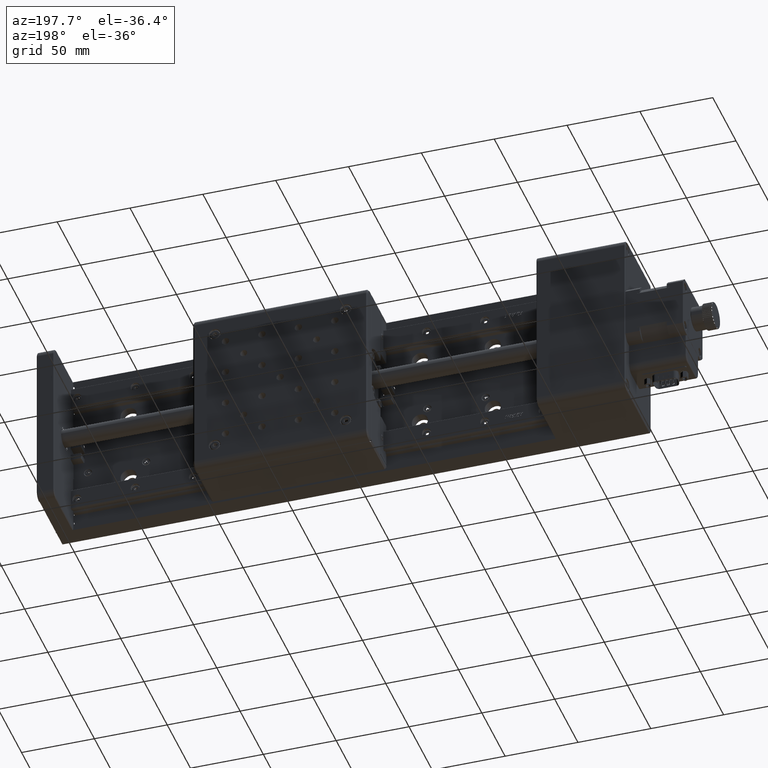
[diagram: clean part render]
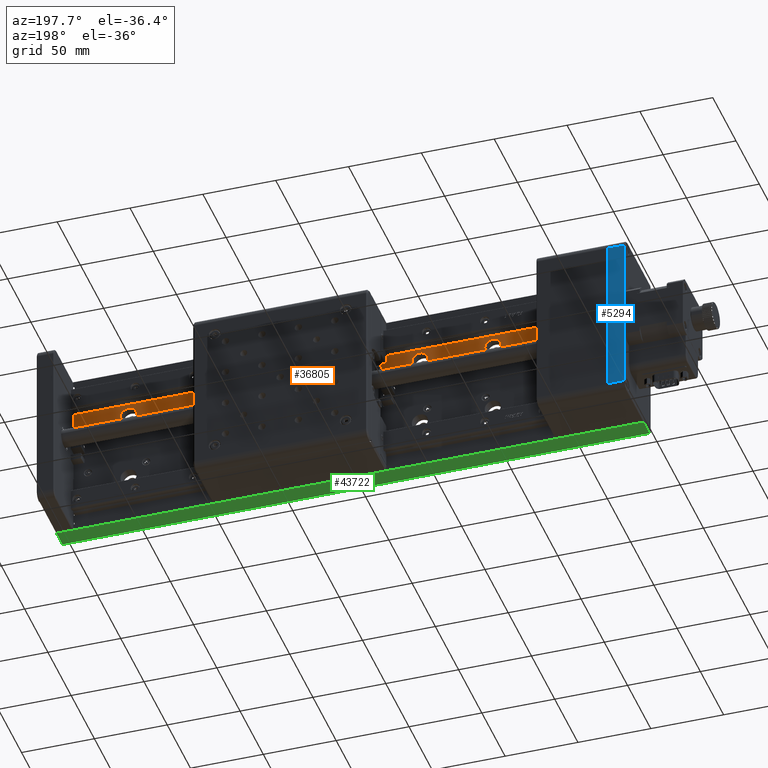
[diagram: same view with three faces highlighted in distinct colors, each labeled with its STEP entity id]
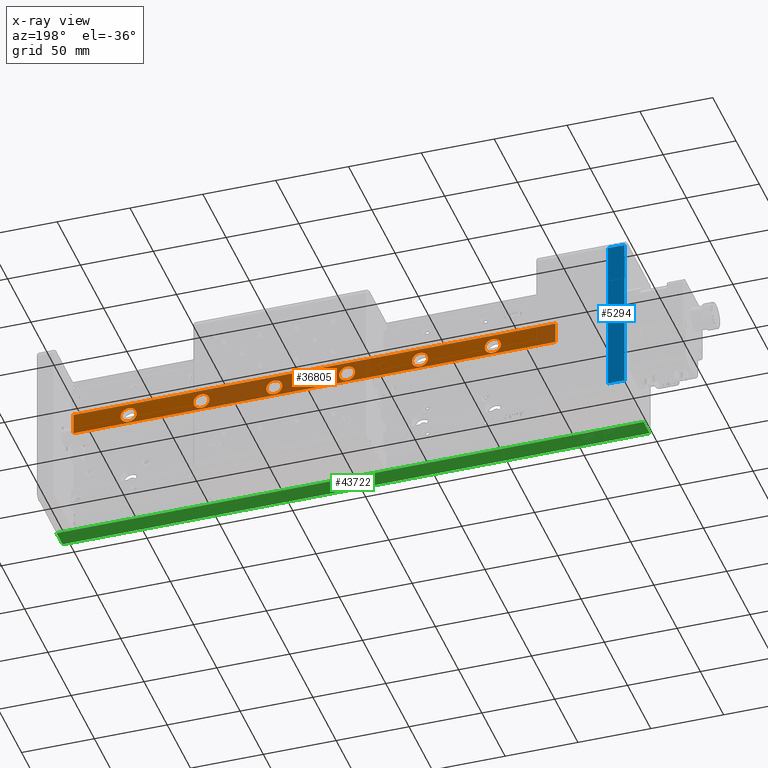
[diagram: x-ray of the same camera — body ghosted, the three highlighted faces saturated]
A machine part, auxiliary view with three faces highlighted in distinct colors.
The next image is the same camera in x-ray (body ghosted, the three faces saturated) — at least one of them is partly hidden behind the body in this view.
Their STEP definitions:

[orange] entity #36805 — the highlighted planar face has unit normal (0, 1, -0).
#657 = EDGE_LOOP ( 'NONE', ( #27978, #5936 ) ) ;
#702 = EDGE_CURVE ( 'NONE', #16754, #17798, #886, .T. ) ;
#886 = CIRCLE ( 'NONE', #5355, 5.500000000000060400 ) ;
#1169 = PLANE ( 'NONE',  #46442 ) ;
#1493 = VERTEX_POINT ( 'NONE', #30551 ) ;
#2066 = CARTESIAN_POINT ( 'NONE',  ( -1149.755485603264600, 14.00000000000032900, -316.4134800466646900 ) ) ;
#2125 = DIRECTION ( 'NONE',  ( 1.401298464324817100E-045, 1.000000000000000000, -1.224646799147353200E-016 ) ) ;
#2161 = AXIS2_PLACEMENT_3D ( 'NONE', #42386, #22781, #30156 ) ;
#2579 = DIRECTION ( 'NONE',  ( -1.056547006598531300E-014, -1.224646799147353200E-016, -1.000000000000000000 ) ) ;
#2685 = FACE_BOUND ( 'NONE', #14513, .T. ) ;
#3140 = DIRECTION ( 'NONE',  ( -1.000000000000000000, 0.0000000000000000000, 1.009293658750131200E-014 ) ) ;
#4107 = EDGE_CURVE ( 'NONE', #32392, #12108, #26063, .T. ) ;
#4406 = ORIENTED_EDGE ( 'NONE', *, *, #18866, .F. ) ;
#4478 = FACE_OUTER_BOUND ( 'NONE', #42921, .T. ) ;
#4717 = DIRECTION ( 'NONE',  ( 1.401298464324817100E-045, 1.000000000000000000, -1.224646799147353200E-016 ) ) ;
#5329 = VERTEX_POINT ( 'NONE', #32606 ) ;
#5355 = AXIS2_PLACEMENT_3D ( 'NONE', #9021, #13146, #25011 ) ;
#5394 = CARTESIAN_POINT ( 'NONE',  ( -803.7554856032646700, 14.00000000000032700, -331.4134800466683800 ) ) ;
#5729 = FACE_BOUND ( 'NONE', #50072, .T. ) ;
#5936 = ORIENTED_EDGE ( 'NONE', *, *, #9138, .F. ) ;
#6136 = AXIS2_PLACEMENT_3D ( 'NONE', #6527, #45868, #42585 ) ;
#6527 = CARTESIAN_POINT ( 'NONE',  ( -1041.755485603264800, 14.00000000000032900, -324.9134800466658800 ) ) ;
#8516 = CIRCLE ( 'NONE', #39396, 5.500000000000060400 ) ;
#8920 = ORIENTED_EDGE ( 'NONE', *, *, #24120, .F. ) ;
#8992 = DIRECTION ( 'NONE',  ( -1.000000000000000000, 0.0000000000000000000, 1.009293658750131200E-014 ) ) ;
#9021 = CARTESIAN_POINT ( 'NONE',  ( -941.7554856032645600, 14.00000000000032900, -324.9134800466669000 ) ) ;
#9138 = EDGE_CURVE ( 'NONE', #35361, #35616, #11641, .T. ) ;
#9636 = CIRCLE ( 'NONE', #44078, 5.500000000000060400 ) ;
#10022 = FACE_BOUND ( 'NONE', #12242, .T. ) ;
#10925 = ORIENTED_EDGE ( 'NONE', *, *, #11642, .F. ) ;
#10986 = CARTESIAN_POINT ( 'NONE',  ( -1134.755485603265200, 14.00000000000031800, -401.9134800466649200 ) ) ;
#11160 = LINE ( 'NONE', #2066, #38810 ) ;
#11230 = CARTESIAN_POINT ( 'NONE',  ( -836.2554856032644500, 14.00000000000032900, -324.9134800466680400 ) ) ;
#11458 = CARTESIAN_POINT ( 'NONE',  ( -886.2554856032645600, 14.00000000000032900, -324.9134800466675300 ) ) ;
#11641 = CIRCLE ( 'NONE', #44807, 5.500000000000060400 ) ;
#11642 = EDGE_CURVE ( 'NONE', #21057, #11962, #29814, .T. ) ;
#11944 = DIRECTION ( 'NONE',  ( -1.000000000000000000, 0.0000000000000000000, 1.009293658750151600E-014 ) ) ;
#11962 = VERTEX_POINT ( 'NONE', #49492 ) ;
#12108 = VERTEX_POINT ( 'NONE', #11458 ) ;
#12242 = EDGE_LOOP ( 'NONE', ( #14410, #4406 ) ) ;
#13005 = DIRECTION ( 'NONE',  ( -1.000000000000000000, 1.293896909779627600E-030, 1.056547006598531300E-014 ) ) ;
#13146 = DIRECTION ( 'NONE',  ( 1.401298464324817100E-045, 1.000000000000000000, -1.224646799147353200E-016 ) ) ;
#13699 = AXIS2_PLACEMENT_3D ( 'NONE', #15887, #15727, #11944 ) ;
#13819 = CIRCLE ( 'NONE', #31731, 5.500000000000060400 ) ;
#14410 = ORIENTED_EDGE ( 'NONE', *, *, #4107, .F. ) ;
#14413 = CIRCLE ( 'NONE', #16135, 5.500000000000060400 ) ;
#14428 = DIRECTION ( 'NONE',  ( 1.056547006598531300E-014, 1.224646799147353200E-016, 1.000000000000000000 ) ) ;
#14513 = EDGE_LOOP ( 'NONE', ( #24530, #35205 ) ) ;
#15727 = DIRECTION ( 'NONE',  ( 1.401298464324817100E-045, 1.000000000000000000, -1.224646799147353200E-016 ) ) ;
#15887 = CARTESIAN_POINT ( 'NONE',  ( -991.7554856032645600, 14.00000000000032900, -324.9134800466664500 ) ) ;
#15906 = CARTESIAN_POINT ( 'NONE',  ( -1036.255485603264600, 14.00000000000032900, -324.9134800466659400 ) ) ;
#16135 = AXIS2_PLACEMENT_3D ( 'NONE', #45420, #2125, #3140 ) ;
#16443 = LINE ( 'NONE', #41348, #39820 ) ;
#16670 = EDGE_CURVE ( 'NONE', #5329, #1493, #31843, .T. ) ;
#16754 = VERTEX_POINT ( 'NONE', #46860 ) ;
#16948 = ORIENTED_EDGE ( 'NONE', *, *, #43068, .F. ) ;
#16954 = CARTESIAN_POINT ( 'NONE',  ( -791.7554856032642200, 14.00000000000033200, -289.9134800466685000 ) ) ;
#17056 = CARTESIAN_POINT ( 'NONE',  ( -1047.255485603264800, 14.00000000000032900, -324.9134800466658200 ) ) ;
#17204 = EDGE_CURVE ( 'NONE', #1493, #30574, #16443, .T. ) ;
#17420 = AXIS2_PLACEMENT_3D ( 'NONE', #42493, #27355, #38877 ) ;
#17534 = CIRCLE ( 'NONE', #17420, 5.500000000000060400 ) ;
#17789 = DIRECTION ( 'NONE',  ( 1.401298464324817100E-045, 1.000000000000000000, -1.224646799147353200E-016 ) ) ;
#17798 = VERTEX_POINT ( 'NONE', #44615 ) ;
#17834 = EDGE_CURVE ( 'NONE', #35616, #35361, #9636, .T. ) ;
#18293 = CARTESIAN_POINT ( 'NONE',  ( -1091.755485603264600, 14.00000000000032900, -324.9134800466653700 ) ) ;
#18672 = EDGE_CURVE ( 'NONE', #18690, #32006, #17534, .T. ) ;
#18690 = VERTEX_POINT ( 'NONE', #11230 ) ;
#18866 = EDGE_CURVE ( 'NONE', #12108, #32392, #14413, .T. ) ;
#18990 = CIRCLE ( 'NONE', #6136, 5.500000000000060400 ) ;
#19049 = DIRECTION ( 'NONE',  ( 1.401298464324817100E-045, 1.000000000000000000, -1.224646799147353200E-016 ) ) ;
#19076 = VERTEX_POINT ( 'NONE', #46968 ) ;
#19989 = DIRECTION ( 'NONE',  ( 1.401298464324817100E-045, 1.000000000000000000, -1.224646799147353200E-016 ) ) ;
#20044 = DIRECTION ( 'NONE',  ( 1.874236696034442800E-044, 1.000000000000000000, -1.224646799147353200E-016 ) ) ;
#21057 = VERTEX_POINT ( 'NONE', #26358 ) ;
#22334 = DIRECTION ( 'NONE',  ( -1.000000000000000000, 0.0000000000000000000, 1.009293658750131200E-014 ) ) ;
#22752 = DIRECTION ( 'NONE',  ( 1.000000000000000000, -1.293896909779627600E-030, -1.056547006598531300E-014 ) ) ;
#22781 = DIRECTION ( 'NONE',  ( 1.401298464324817100E-045, 1.000000000000000000, -1.224646799147353200E-016 ) ) ;
#23171 = CARTESIAN_POINT ( 'NONE',  ( -1041.755485603264800, 14.00000000000032900, -324.9134800466658800 ) ) ;
#23975 = ORIENTED_EDGE ( 'NONE', *, *, #25780, .F. ) ;
#24120 = EDGE_CURVE ( 'NONE', #19076, #5329, #11160, .T. ) ;
#24158 = FACE_BOUND ( 'NONE', #657, .T. ) ;
#24244 = CARTESIAN_POINT ( 'NONE',  ( -897.2554856032646700, 14.00000000000032900, -324.9134800466674200 ) ) ;
#24530 = ORIENTED_EDGE ( 'NONE', *, *, #28154, .F. ) ;
#24796 = VERTEX_POINT ( 'NONE', #17056 ) ;
#25011 = DIRECTION ( 'NONE',  ( -1.000000000000000000, 0.0000000000000000000, 1.009293658750131200E-014 ) ) ;
#25780 = EDGE_CURVE ( 'NONE', #24796, #28097, #18990, .T. ) ;
#25786 = EDGE_CURVE ( 'NONE', #28097, #24796, #8516, .T. ) ;
#26063 = CIRCLE ( 'NONE', #45348, 5.500000000000060400 ) ;
#26358 = CARTESIAN_POINT ( 'NONE',  ( -997.2554856032644500, 14.00000000000032900, -324.9134800466663900 ) ) ;
#27355 = DIRECTION ( 'NONE',  ( 1.401298464324817100E-045, 1.000000000000000000, -1.224646799147353200E-016 ) ) ;
#27978 = ORIENTED_EDGE ( 'NONE', *, *, #17834, .F. ) ;
#28097 = VERTEX_POINT ( 'NONE', #15906 ) ;
#28154 = EDGE_CURVE ( 'NONE', #32006, #18690, #44014, .T. ) ;
#28567 = CARTESIAN_POINT ( 'NONE',  ( -1091.755485603264600, 14.00000000000032900, -324.9134800466653700 ) ) ;
#28797 = VECTOR ( 'NONE', #2579, 1000.000000000000000 ) ;
#29470 = CIRCLE ( 'NONE', #13699, 5.499999999999949400 ) ;
#29696 = ORIENTED_EDGE ( 'NONE', *, *, #25786, .F. ) ;
#29814 = CIRCLE ( 'NONE', #2161, 5.499999999999949400 ) ;
#30156 = DIRECTION ( 'NONE',  ( -1.000000000000000000, 0.0000000000000000000, 1.009293658750151600E-014 ) ) ;
#30551 = CARTESIAN_POINT ( 'NONE',  ( -1134.755485603264600, 14.00000000000032700, -331.4134800466649200 ) ) ;
#30574 = VERTEX_POINT ( 'NONE', #5394 ) ;
#31692 = DIRECTION ( 'NONE',  ( 1.401298464324817100E-045, 1.000000000000000000, -1.224646799147353200E-016 ) ) ;
#31731 = AXIS2_PLACEMENT_3D ( 'NONE', #47497, #4717, #43910 ) ;
#31766 = EDGE_CURVE ( 'NONE', #17798, #16754, #13819, .T. ) ;
#31843 = LINE ( 'NONE', #10986, #28797 ) ;
#32006 = VERTEX_POINT ( 'NONE', #38034 ) ;
#32392 = VERTEX_POINT ( 'NONE', #24244 ) ;
#32606 = CARTESIAN_POINT ( 'NONE',  ( -1134.755485603264300, 14.00000000000032900, -316.4134800466649200 ) ) ;
#33212 = ORIENTED_EDGE ( 'NONE', *, *, #39887, .F. ) ;
#34056 = ORIENTED_EDGE ( 'NONE', *, *, #702, .F. ) ;
#35205 = ORIENTED_EDGE ( 'NONE', *, *, #18672, .F. ) ;
#35319 = VECTOR ( 'NONE', #14428, 1000.000000000000000 ) ;
#35361 = VERTEX_POINT ( 'NONE', #48284 ) ;
#35463 = EDGE_LOOP ( 'NONE', ( #23975, #29696 ) ) ;
#35616 = VERTEX_POINT ( 'NONE', #35695 ) ;
#35695 = CARTESIAN_POINT ( 'NONE',  ( -1097.255485603264600, 14.00000000000032900, -324.9134800466653100 ) ) ;
#35885 = EDGE_LOOP ( 'NONE', ( #10925, #16948 ) ) ;
#36805 = ADVANCED_FACE ( 'NONE', ( #4478, #2685, #10022, #5729, #49349, #38905, #24158 ), #1169, .T. ) ;
#37448 = DIRECTION ( 'NONE',  ( -1.000000000000000000, 1.303720833720717900E-030, 1.064568849262007800E-014 ) ) ;
#37868 = DIRECTION ( 'NONE',  ( -1.000000000000000000, 0.0000000000000000000, 1.009293658750131200E-014 ) ) ;
#38034 = CARTESIAN_POINT ( 'NONE',  ( -847.2554856032645600, 14.00000000000032900, -324.9134800466679300 ) ) ;
#38404 = LINE ( 'NONE', #49656, #35319 ) ;
#38587 = ORIENTED_EDGE ( 'NONE', *, *, #16670, .F. ) ;
#38810 = VECTOR ( 'NONE', #37448, 1000.000000000000000 ) ;
#38877 = DIRECTION ( 'NONE',  ( -1.000000000000000000, 0.0000000000000000000, 1.009293658750131200E-014 ) ) ;
#38905 = FACE_BOUND ( 'NONE', #35463, .T. ) ;
#39396 = AXIS2_PLACEMENT_3D ( 'NONE', #23171, #19049, #46715 ) ;
#39820 = VECTOR ( 'NONE', #22752, 1000.000000000000000 ) ;
#39887 = EDGE_CURVE ( 'NONE', #30574, #19076, #38404, .T. ) ;
#41348 = CARTESIAN_POINT ( 'NONE',  ( -803.7554856032646700, 14.00000000000032700, -331.4134800466683800 ) ) ;
#41445 = AXIS2_PLACEMENT_3D ( 'NONE', #43752, #31692, #44112 ) ;
#42386 = CARTESIAN_POINT ( 'NONE',  ( -991.7554856032645600, 14.00000000000032900, -324.9134800466664500 ) ) ;
#42493 = CARTESIAN_POINT ( 'NONE',  ( -841.7554856032645600, 14.00000000000032900, -324.9134800466679800 ) ) ;
#42585 = DIRECTION ( 'NONE',  ( -1.000000000000000000, 0.0000000000000000000, 1.009293658750131200E-014 ) ) ;
#42700 = ORIENTED_EDGE ( 'NONE', *, *, #17204, .F. ) ;
#42921 = EDGE_LOOP ( 'NONE', ( #38587, #8920, #33212, #42700 ) ) ;
#43068 = EDGE_CURVE ( 'NONE', #11962, #21057, #29470, .T. ) ;
#43752 = CARTESIAN_POINT ( 'NONE',  ( -841.7554856032645600, 14.00000000000032900, -324.9134800466679800 ) ) ;
#43910 = DIRECTION ( 'NONE',  ( -1.000000000000000000, 0.0000000000000000000, 1.009293658750131200E-014 ) ) ;
#44014 = CIRCLE ( 'NONE', #41445, 5.500000000000060400 ) ;
#44078 = AXIS2_PLACEMENT_3D ( 'NONE', #18293, #17789, #37868 ) ;
#44112 = DIRECTION ( 'NONE',  ( -1.000000000000000000, 0.0000000000000000000, 1.009293658750131200E-014 ) ) ;
#44615 = CARTESIAN_POINT ( 'NONE',  ( -947.2554856032646700, 14.00000000000032900, -324.9134800466668500 ) ) ;
#44807 = AXIS2_PLACEMENT_3D ( 'NONE', #28567, #19989, #8992 ) ;
#45348 = AXIS2_PLACEMENT_3D ( 'NONE', #45861, #49955, #22334 ) ;
#45420 = CARTESIAN_POINT ( 'NONE',  ( -891.7554856032645600, 14.00000000000032900, -324.9134800466674700 ) ) ;
#45861 = CARTESIAN_POINT ( 'NONE',  ( -891.7554856032645600, 14.00000000000032900, -324.9134800466674700 ) ) ;
#45868 = DIRECTION ( 'NONE',  ( 1.401298464324817100E-045, 1.000000000000000000, -1.224646799147353200E-016 ) ) ;
#45913 = ORIENTED_EDGE ( 'NONE', *, *, #31766, .F. ) ;
#46442 = AXIS2_PLACEMENT_3D ( 'NONE', #16954, #20044, #13005 ) ;
#46715 = DIRECTION ( 'NONE',  ( -1.000000000000000000, 0.0000000000000000000, 1.009293658750131200E-014 ) ) ;
#46860 = CARTESIAN_POINT ( 'NONE',  ( -936.2554856032645600, 14.00000000000032900, -324.9134800466669600 ) ) ;
#46968 = CARTESIAN_POINT ( 'NONE',  ( -803.7554856032644500, 14.00000000000032900, -316.4134800466684400 ) ) ;
#47497 = CARTESIAN_POINT ( 'NONE',  ( -941.7554856032645600, 14.00000000000032900, -324.9134800466669000 ) ) ;
#48284 = CARTESIAN_POINT ( 'NONE',  ( -1086.255485603264600, 14.00000000000032900, -324.9134800466654300 ) ) ;
#49349 = FACE_BOUND ( 'NONE', #35885, .T. ) ;
#49492 = CARTESIAN_POINT ( 'NONE',  ( -986.2554856032645600, 14.00000000000032900, -324.9134800466665100 ) ) ;
#49656 = CARTESIAN_POINT ( 'NONE',  ( -803.7554856032654700, 14.00000000000031800, -404.9134800466683800 ) ) ;
#49955 = DIRECTION ( 'NONE',  ( 1.401298464324817100E-045, 1.000000000000000000, -1.224646799147353200E-016 ) ) ;
#50072 = EDGE_LOOP ( 'NONE', ( #45913, #34056 ) ) ;

[blue] entity #5294 — the highlighted planar face has unit normal (-0, -1, 0).
#1196 = PLANE ( 'NONE',  #36439 ) ;
#3793 = FACE_OUTER_BOUND ( 'NONE', #41052, .T. ) ;
#5294 = ADVANCED_FACE ( 'NONE', ( #3793 ), #1196, .F. ) ;
#5392 = EDGE_CURVE ( 'NONE', #15396, #21459, #9959, .T. ) ;
#7499 = VECTOR ( 'NONE', #36988, 1000.000000000000000 ) ;
#9959 = LINE ( 'NONE', #42033, #33913 ) ;
#13625 = CARTESIAN_POINT ( 'NONE',  ( -1195.255485603265200, 55.00000000000036900, -404.9134800466643500 ) ) ;
#13640 = CARTESIAN_POINT ( 'NONE',  ( -1195.255485603264300, 55.00000000000038400, -294.9134800466643500 ) ) ;
#13945 = CARTESIAN_POINT ( 'NONE',  ( -1183.755485603264100, 55.00000000000038400, -294.9134800466644600 ) ) ;
#14052 = EDGE_CURVE ( 'NONE', #15396, #21479, #24113, .T. ) ;
#14183 = EDGE_CURVE ( 'NONE', #21459, #17449, #37052, .T. ) ;
#15396 = VERTEX_POINT ( 'NONE', #29234 ) ;
#16683 = DIRECTION ( 'NONE',  ( 1.000000000000000000, -1.293896909779627600E-030, -1.056547006598531300E-014 ) ) ;
#17449 = VERTEX_POINT ( 'NONE', #20424 ) ;
#19684 = LINE ( 'NONE', #24246, #39365 ) ;
#20355 = ORIENTED_EDGE ( 'NONE', *, *, #14183, .T. ) ;
#20424 = CARTESIAN_POINT ( 'NONE',  ( -1195.255485603264300, 55.00000000000038400, -294.9134800466643500 ) ) ;
#21459 = VERTEX_POINT ( 'NONE', #13625 ) ;
#21479 = VERTEX_POINT ( 'NONE', #13945 ) ;
#22051 = ORIENTED_EDGE ( 'NONE', *, *, #14052, .F. ) ;
#23451 = ORIENTED_EDGE ( 'NONE', *, *, #5392, .T. ) ;
#24113 = LINE ( 'NONE', #24985, #43798 ) ;
#24246 = CARTESIAN_POINT ( 'NONE',  ( -1183.755485603264100, 55.00000000000038400, -294.9134800466644600 ) ) ;
#24985 = CARTESIAN_POINT ( 'NONE',  ( -1183.755485603264100, 55.00000000000038400, -289.9134800466644600 ) ) ;
#25385 = DIRECTION ( 'NONE',  ( -1.000000000000000000, 1.293896909779627600E-030, 1.056547006598531300E-014 ) ) ;
#26388 = DIRECTION ( 'NONE',  ( -1.000000000000000000, 1.293896909779627600E-030, 1.056547006598531300E-014 ) ) ;
#29234 = CARTESIAN_POINT ( 'NONE',  ( -1183.755485603265500, 55.00000000000036900, -404.9134800466644600 ) ) ;
#33913 = VECTOR ( 'NONE', #26388, 1000.000000000000000 ) ;
#33967 = ORIENTED_EDGE ( 'NONE', *, *, #50068, .T. ) ;
#35969 = DIRECTION ( 'NONE',  ( 1.056547006598531300E-014, 1.224646799147353200E-016, 1.000000000000000000 ) ) ;
#36439 = AXIS2_PLACEMENT_3D ( 'NONE', #36899, #48589, #25385 ) ;
#36899 = CARTESIAN_POINT ( 'NONE',  ( -1183.755485603264100, 55.00000000000038400, -289.9134800466644600 ) ) ;
#36988 = DIRECTION ( 'NONE',  ( 1.056547006598531300E-014, 1.224646799147353200E-016, 1.000000000000000000 ) ) ;
#37052 = LINE ( 'NONE', #13640, #7499 ) ;
#39365 = VECTOR ( 'NONE', #16683, 1000.000000000000000 ) ;
#41052 = EDGE_LOOP ( 'NONE', ( #23451, #20355, #33967, #22051 ) ) ;
#42033 = CARTESIAN_POINT ( 'NONE',  ( -1183.755485603265500, 55.00000000000036900, -404.9134800466644600 ) ) ;
#43798 = VECTOR ( 'NONE', #35969, 1000.000000000000000 ) ;
#48589 = DIRECTION ( 'NONE',  ( -1.874236696034442800E-044, -1.000000000000000000, 1.224646799147353200E-016 ) ) ;
#50068 = EDGE_CURVE ( 'NONE', #17449, #21479, #19684, .T. ) ;

[green] entity #43722 — the highlighted planar face has unit normal (0, 0, 1).
#1586 = CARTESIAN_POINT ( 'NONE',  ( -1195.255485603265500, 1.000000000000318400, -409.9134800466642900 ) ) ;
#5332 = CARTESIAN_POINT ( 'NONE',  ( -1195.755485603265500, 3.174543961037557000E-013, -409.9134800466642300 ) ) ;
#5510 = VERTEX_POINT ( 'NONE', #27730 ) ;
#5527 = CARTESIAN_POINT ( 'NONE',  ( -792.2554856032655800, 3.174543961037557000E-013, -409.9134800466685000 ) ) ;
#6198 = EDGE_CURVE ( 'NONE', #37464, #43363, #7990, .T. ) ;
#6216 = CARTESIAN_POINT ( 'NONE',  ( -1195.755485603265500, 14.00000000000031800, -409.9134800466642300 ) ) ;
#7990 = LINE ( 'NONE', #5527, #28919 ) ;
#9833 = LINE ( 'NONE', #20856, #30100 ) ;
#9989 = DIRECTION ( 'NONE',  ( -1.401298464324817100E-045, -1.000000000000000000, 1.224646799147353200E-016 ) ) ;
#12380 = ORIENTED_EDGE ( 'NONE', *, *, #6198, .T. ) ;
#14873 = DIRECTION ( 'NONE',  ( -1.000000000000000000, 1.293896909779627600E-030, 1.056547006598531300E-014 ) ) ;
#18751 = LINE ( 'NONE', #6216, #45829 ) ;
#19995 = VECTOR ( 'NONE', #14873, 1000.000000000000000 ) ;
#20825 = FACE_OUTER_BOUND ( 'NONE', #47413, .T. ) ;
#20856 = CARTESIAN_POINT ( 'NONE',  ( -1195.255485603265500, 3.174543961037557000E-013, -409.9134800466642900 ) ) ;
#21560 = ORIENTED_EDGE ( 'NONE', *, *, #30134, .T. ) ;
#22050 = DIRECTION ( 'NONE',  ( 1.000000000000000000, -1.293896909779627600E-030, -1.056547006598531300E-014 ) ) ;
#22456 = CARTESIAN_POINT ( 'NONE',  ( -1195.755485603265500, 1.000000000000318400, -409.9134800466642300 ) ) ;
#24812 = EDGE_CURVE ( 'NONE', #38099, #5510, #9833, .T. ) ;
#25107 = DIRECTION ( 'NONE',  ( 1.056547006598531300E-014, 1.224646799147353200E-016, 1.000000000000000000 ) ) ;
#27730 = CARTESIAN_POINT ( 'NONE',  ( -1195.255485603265500, 14.00000000000031800, -409.9134800466642900 ) ) ;
#28153 = ORIENTED_EDGE ( 'NONE', *, *, #34957, .T. ) ;
#28919 = VECTOR ( 'NONE', #9989, 1000.000000000000000 ) ;
#29215 = LINE ( 'NONE', #22456, #19995 ) ;
#30093 = CARTESIAN_POINT ( 'NONE',  ( -792.2554856032655800, 1.000000000000318400, -409.9134800466685000 ) ) ;
#30100 = VECTOR ( 'NONE', #33037, 1000.000000000000000 ) ;
#30134 = EDGE_CURVE ( 'NONE', #43363, #38099, #29215, .T. ) ;
#32989 = ORIENTED_EDGE ( 'NONE', *, *, #24812, .T. ) ;
#33037 = DIRECTION ( 'NONE',  ( 1.401298464324817100E-045, 1.000000000000000000, -1.224646799147353200E-016 ) ) ;
#34957 = EDGE_CURVE ( 'NONE', #5510, #37464, #18751, .T. ) ;
#37464 = VERTEX_POINT ( 'NONE', #49698 ) ;
#38099 = VERTEX_POINT ( 'NONE', #1586 ) ;
#40580 = PLANE ( 'NONE',  #44340 ) ;
#40758 = DIRECTION ( 'NONE',  ( -1.401298464324817100E-045, -1.000000000000000000, 1.224646799147353200E-016 ) ) ;
#43363 = VERTEX_POINT ( 'NONE', #30093 ) ;
#43722 = ADVANCED_FACE ( 'NONE', ( #20825 ), #40580, .F. ) ;
#44340 = AXIS2_PLACEMENT_3D ( 'NONE', #5332, #25107, #40758 ) ;
#45829 = VECTOR ( 'NONE', #22050, 1000.000000000000000 ) ;
#47413 = EDGE_LOOP ( 'NONE', ( #28153, #12380, #21560, #32989 ) ) ;
#49698 = CARTESIAN_POINT ( 'NONE',  ( -792.2554856032655800, 14.00000000000031800, -409.9134800466685000 ) ) ;